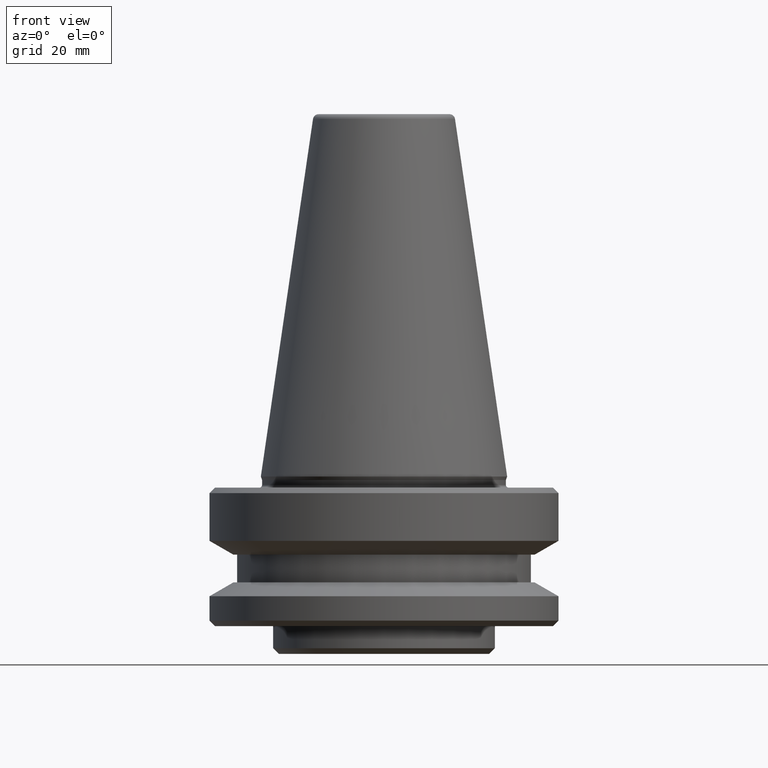
[diagram: clean part render]
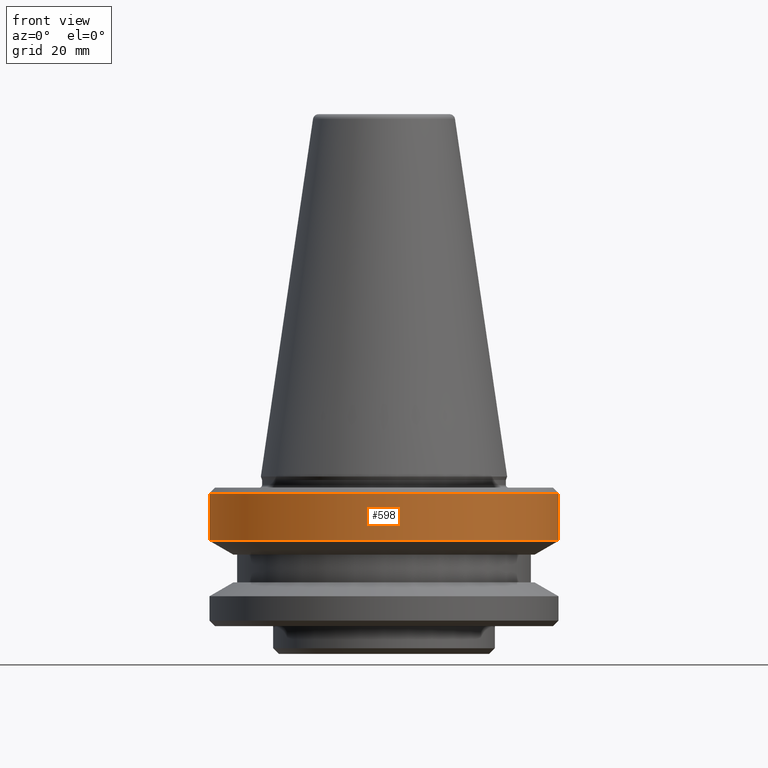
[diagram: same view with one face highlighted and labeled with its STEP entity id]
A machine part, front view. The second image highlights one B-rep face of the part: STEP entity #598.
In plain terms, the highlighted cylindrical surface (partial cylindrical patch) has radius 31.5 mm, axis along (-0, -0, 1).
Its self-contained STEP definition (entity closure, byte-faithful):
#25 = DIRECTION ( 'NONE',  ( -0.0000000000000000000, -0.0000000000000000000, 1.000000000000000000 ) ) ;
#46 = EDGE_CURVE ( 'NONE', #403, #274, #564, .T. ) ;
#88 = AXIS2_PLACEMENT_3D ( 'NONE', #811, #317, #863 ) ;
#101 = CYLINDRICAL_SURFACE ( 'NONE', #680, 31.50000000000008500 ) ;
#125 = ORIENTED_EDGE ( 'NONE', *, *, #933, .T. ) ;
#150 = ORIENTED_EDGE ( 'NONE', *, *, #159, .F. ) ;
#151 = CARTESIAN_POINT ( 'NONE',  ( -31.50000000000008500, 3.857637417314172900E-015, 102.7767479270557900 ) ) ;
#159 = EDGE_CURVE ( 'NONE', #403, #223, #541, .T. ) ;
#160 = LINE ( 'NONE', #245, #568 ) ;
#178 = DIRECTION ( 'NONE',  ( 1.000000000000000000, 0.0000000000000000000, 0.0000000000000000000 ) ) ;
#197 = ORIENTED_EDGE ( 'NONE', *, *, #46, .T. ) ;
#205 = CARTESIAN_POINT ( 'NONE',  ( -31.50000000000008500, 3.857637417314172900E-015, -3.000000000001446000 ) ) ;
#223 = VERTEX_POINT ( 'NONE', #205 ) ;
#245 = CARTESIAN_POINT ( 'NONE',  ( 31.50000000000008500, 0.0000000000000000000, 102.7767479270557900 ) ) ;
#274 = VERTEX_POINT ( 'NONE', #788 ) ;
#317 = DIRECTION ( 'NONE',  ( -0.0000000000000000000, -0.0000000000000000000, 1.000000000000000000 ) ) ;
#321 = CARTESIAN_POINT ( 'NONE',  ( 31.50000000000008500, 0.0000000000000000000, -3.000000000001446000 ) ) ;
#342 = VERTEX_POINT ( 'NONE', #321 ) ;
#349 = DIRECTION ( 'NONE',  ( -0.0000000000000000000, -0.0000000000000000000, 1.000000000000000000 ) ) ;
#403 = VERTEX_POINT ( 'NONE', #649 ) ;
#541 = LINE ( 'NONE', #151, #761 ) ;
#564 = CIRCLE ( 'NONE', #88, 31.50000000000008500 ) ;
#568 = VECTOR ( 'NONE', #659, 1000.000000000000000 ) ;
#598 = ADVANCED_FACE ( 'NONE', ( #710 ), #101, .T. ) ;
#646 = DIRECTION ( 'NONE',  ( 1.000000000000000000, 0.0000000000000000000, 0.0000000000000000000 ) ) ;
#649 = CARTESIAN_POINT ( 'NONE',  ( -31.50000000000008500, 3.857637417314172900E-015, -11.59985799368445900 ) ) ;
#659 = DIRECTION ( 'NONE',  ( -0.0000000000000000000, -0.0000000000000000000, 1.000000000000000000 ) ) ;
#664 = AXIS2_PLACEMENT_3D ( 'NONE', #883, #349, #178 ) ;
#680 = AXIS2_PLACEMENT_3D ( 'NONE', #909, #25, #646 ) ;
#710 = FACE_OUTER_BOUND ( 'NONE', #993, .T. ) ;
#743 = CIRCLE ( 'NONE', #664, 31.50000000000008500 ) ;
#761 = VECTOR ( 'NONE', #945, 1000.000000000000000 ) ;
#788 = CARTESIAN_POINT ( 'NONE',  ( 31.50000000000008500, 0.0000000000000000000, -11.59985799368445900 ) ) ;
#811 = CARTESIAN_POINT ( 'NONE',  ( 0.0000000000000000000, 0.0000000000000000000, -11.59985799368445900 ) ) ;
#830 = ORIENTED_EDGE ( 'NONE', *, *, #925, .F. ) ;
#863 = DIRECTION ( 'NONE',  ( 1.000000000000000000, 0.0000000000000000000, 0.0000000000000000000 ) ) ;
#883 = CARTESIAN_POINT ( 'NONE',  ( 0.0000000000000000000, 0.0000000000000000000, -3.000000000001446000 ) ) ;
#909 = CARTESIAN_POINT ( 'NONE',  ( 0.0000000000000000000, 0.0000000000000000000, 102.7767479270557900 ) ) ;
#925 = EDGE_CURVE ( 'NONE', #223, #342, #743, .T. ) ;
#933 = EDGE_CURVE ( 'NONE', #274, #342, #160, .T. ) ;
#945 = DIRECTION ( 'NONE',  ( -0.0000000000000000000, -0.0000000000000000000, 1.000000000000000000 ) ) ;
#993 = EDGE_LOOP ( 'NONE', ( #150, #197, #125, #830 ) ) ;